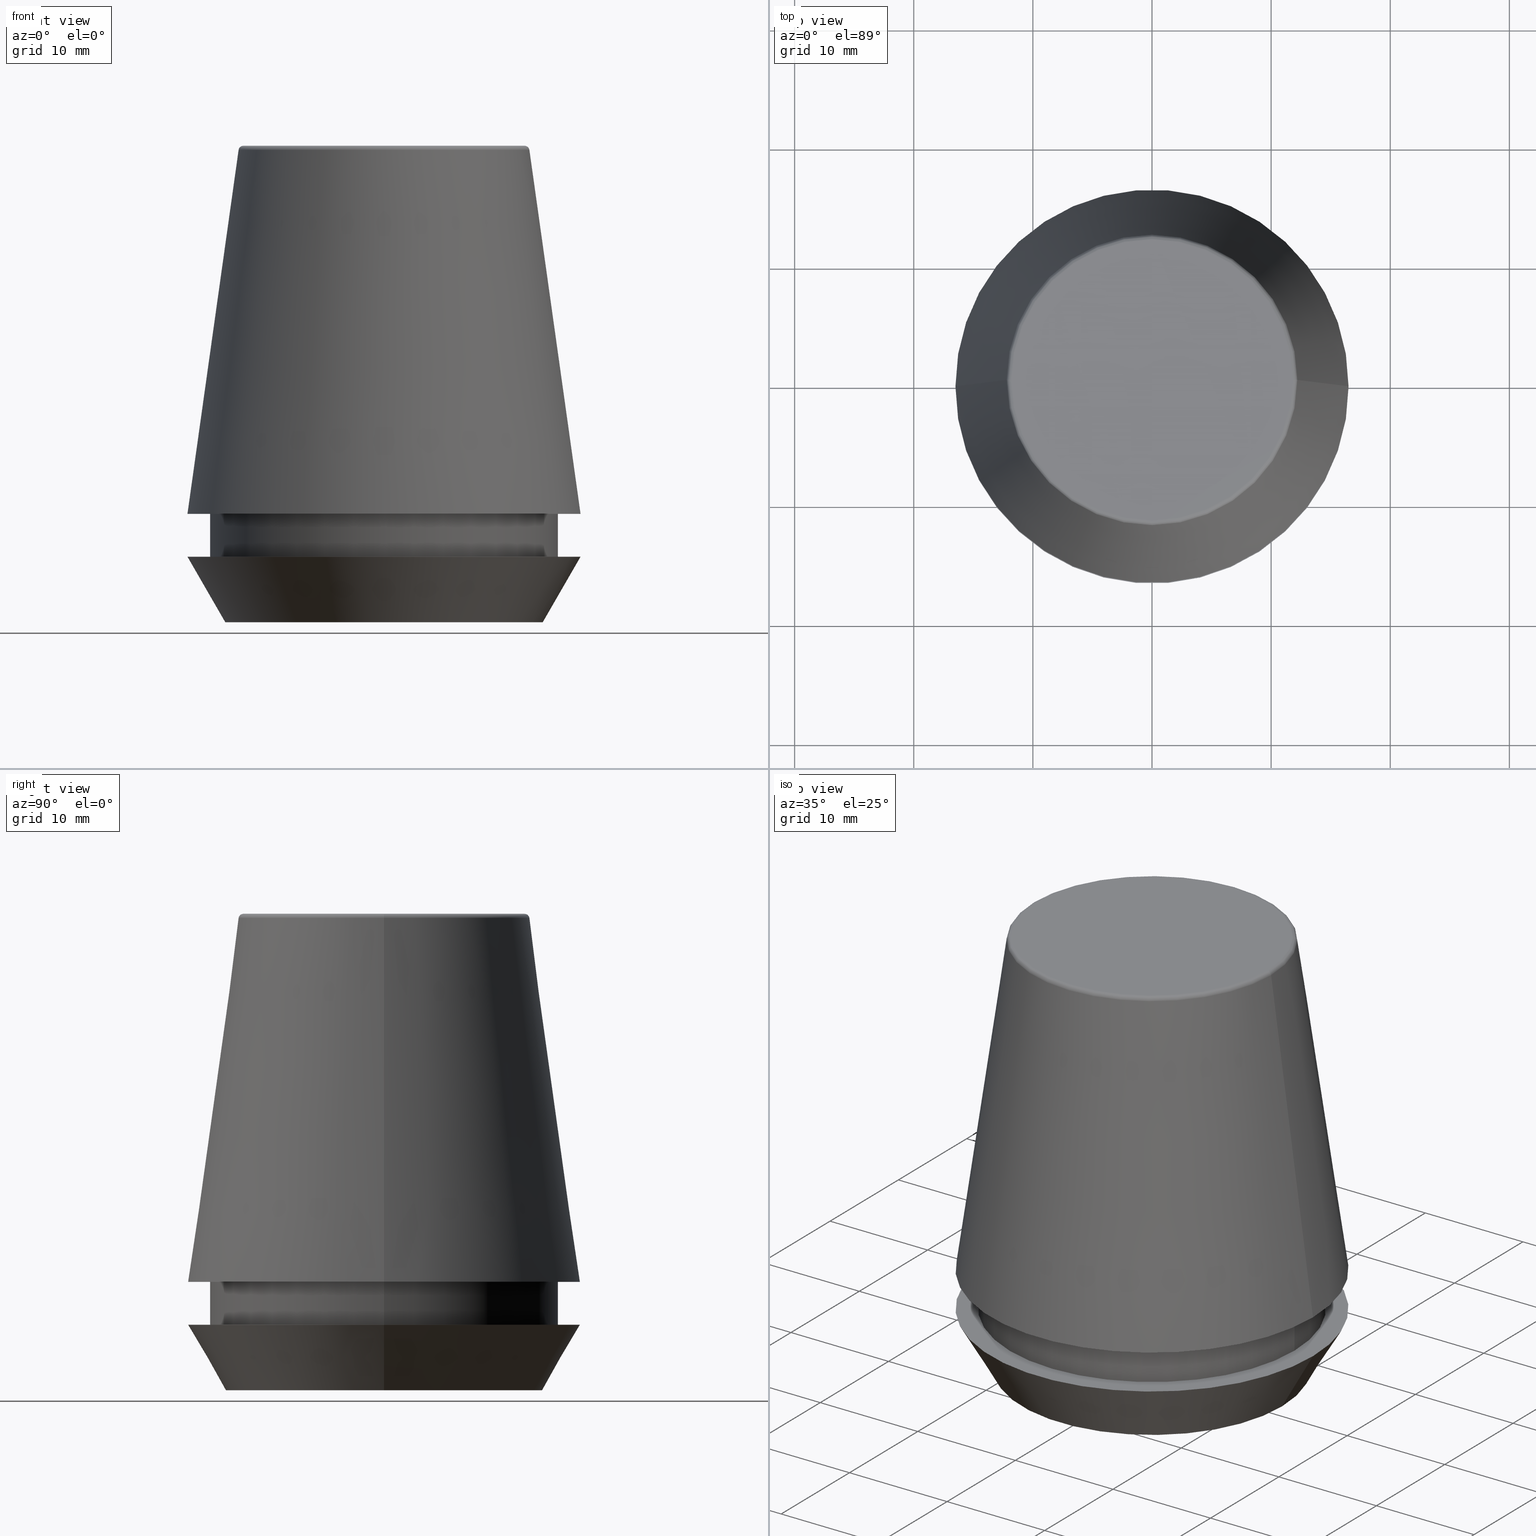
[diagram: canonical four-view strip — front | top / right | iso, engineering-drawing reading convention]
A machine part, canonical four-view strip (front | top / right | iso — engineering-drawing reading convention). The complete STEP part file that produces these views, byte-faithful:
ISO-10303-21;
HEADER;
FILE_DESCRIPTION (( 'STEP AP203' ),
    '1' );
FILE_NAME ('TAP COLLET ER 32G  14.0 X 11.2.STEP',
    '2019-04-09T11:25:57',
    ( '' ),
    ( '' ),
    'SwSTEP 2.0',
    'SolidWorks 2014',
    '' );
FILE_SCHEMA (( 'CONFIG_CONTROL_DESIGN' ));
ENDSEC;

DATA;
#1 = CARTESIAN_POINT ( 'NONE',  ( 0.0000000000000000000, 0.0000000000000000000, 5.500000000000005300 ) ) ;
#2 = DIRECTION ( 'NONE',  ( 1.000000000000000000, 0.0000000000000000000, 0.0000000000000000000 ) ) ;
#3 = DATE_AND_TIME ( #307, #228 ) ;
#4 = CYLINDRICAL_SURFACE ( 'NONE', #164, 14.60000000000000000 ) ;
#5 = VERTEX_POINT ( 'NONE', #352 ) ;
#6 = CARTESIAN_POINT ( 'NONE',  ( 16.50032537154048700, 2.020707065114692300E-015, 9.099999999999997900 ) ) ;
#7 = PLANE ( 'NONE',  #58 ) ;
#8 = CARTESIAN_POINT ( 'NONE',  ( -16.50032537154048700, 0.0000000000000000000, 9.099999999999997900 ) ) ;
#9 = ORIENTED_EDGE ( 'NONE', *, *, #255, .F. ) ;
#10 = DIRECTION ( 'NONE',  ( 0.0000000000000000000, -0.0000000000000000000, 1.000000000000000000 ) ) ;
#11 = CARTESIAN_POINT ( 'NONE',  ( 0.0000000000000000000, 0.0000000000000000000, 5.500000000000005300 ) ) ;
#12 = APPROVAL_DATE_TIME ( #318, #28 ) ;
#13 = CC_DESIGN_PERSON_AND_ORGANIZATION_ASSIGNMENT ( #47, #204, ( #151 ) ) ;
#14 = CIRCLE ( 'NONE', #89, 16.50032537154048700 ) ;
#15 = DIRECTION ( 'NONE',  ( -0.4999999999999947300, 6.123233995736700700E-017, 0.8660254037844418200 ) ) ;
#16 = ORIENTED_EDGE ( 'NONE', *, *, #321, .T. ) ;
#17 = DIRECTION ( 'NONE',  ( -1.000000000000000000, 0.0000000000000000000, 0.0000000000000000000 ) ) ;
#18 = AXIS2_PLACEMENT_3D ( 'NONE', #196, #75, #138 ) ;
#19 = CYLINDRICAL_SURFACE ( 'NONE', #31, 14.60000000000000000 ) ;
#20 = CIRCLE ( 'NONE', #76, 13.32457351945710200 ) ;
#21 = APPLICATION_CONTEXT ( 'configuration controlled 3d designs of mechanical parts and assemblies' ) ;
#22 = VERTEX_POINT ( 'NONE', #49 ) ;
#23 = ORIENTED_EDGE ( 'NONE', *, *, #291, .F. ) ;
#24 = APPROVAL_STATUS ( 'not_yet_approved' ) ;
#25 = DATE_AND_TIME ( #117, #192 ) ;
#26 = ORIENTED_EDGE ( 'NONE', *, *, #377, .F. ) ;
#27 = ORIENTED_EDGE ( 'NONE', *, *, #276, .T. ) ;
#28 = APPROVAL ( #142, 'UNSPECIFIED' ) ;
#29 = CLOSED_SHELL ( 'NONE', ( #100, #323, #65, #118, #94, #384, #293, #362, #240, #123, #328, #113 ) ) ;
#30 = VERTEX_POINT ( 'NONE', #198 ) ;
#31 = AXIS2_PLACEMENT_3D ( 'NONE', #374, #342, #99 ) ;
#32 = DIRECTION ( 'NONE',  ( 0.0000000000000000000, 0.0000000000000000000, -1.000000000000000000 ) ) ;
#33 = AXIS2_PLACEMENT_3D ( 'NONE', #149, #297, #254 ) ;
#34 = CARTESIAN_POINT ( 'NONE',  ( 0.0000000000000000000, 0.0000000000000000000, 101.8074564848000400 ) ) ;
#35 = CALENDAR_DATE ( 2019, 9, 4 ) ;
#36 = FACE_BOUND ( 'NONE', #63, .T. ) ;
#37 = DIRECTION ( 'NONE',  ( -0.0000000000000000000, -0.0000000000000000000, 1.000000000000000000 ) ) ;
#38 = AXIS2_PLACEMENT_3D ( 'NONE', #340, #78, #133 ) ;
#39 = ORIENTED_EDGE ( 'NONE', *, *, #316, .F. ) ;
#40 =( NAMED_UNIT ( * ) PLANE_ANGLE_UNIT ( ) SI_UNIT ( $, .RADIAN. ) );
#41 = APPROVAL_DATE_TIME ( #128, #361 ) ;
#42 = AXIS2_PLACEMENT_3D ( 'NONE', #102, #200, #247 ) ;
#43 = CARTESIAN_POINT ( 'NONE',  ( 0.0000000000000000000, 0.0000000000000000000, 39.60000000000000100 ) ) ;
#44 = ORIENTED_EDGE ( 'NONE', *, *, #234, .T. ) ;
#45 = DESIGN_CONTEXT ( 'detailed design', #21, 'design' ) ;
#46 = EDGE_CURVE ( 'NONE', #96, #155, #353, .T. ) ;
#47 = PERSON_AND_ORGANIZATION ( #259, #143 ) ;
#48 = CIRCLE ( 'NONE', #184, 16.50032537154048700 ) ;
#49 = CARTESIAN_POINT ( 'NONE',  ( -14.60000000000000000, 1.787984326755135800E-015, 9.099999999999997900 ) ) ;
#50 = VERTEX_POINT ( 'NONE', #223 ) ;
#51 = DIRECTION ( 'NONE',  ( 1.000000000000000000, 0.0000000000000000000, 0.0000000000000000000 ) ) ;
#52 = APPROVAL_STATUS ( 'not_yet_approved' ) ;
#53 = AXIS2_PLACEMENT_3D ( 'NONE', #301, #37, #266 ) ;
#54 = DIRECTION ( 'NONE',  ( -0.1391731009600586900, 0.0000000000000000000, -0.9902680687415712500 ) ) ;
#55 = APPROVAL_PERSON_ORGANIZATION ( #134, #361, #284 ) ;
#56 = VERTEX_POINT ( 'NONE', #282 ) ;
#57 = DIRECTION ( 'NONE',  ( -0.0000000000000000000, -0.0000000000000000000, 1.000000000000000000 ) ) ;
#58 = AXIS2_PLACEMENT_3D ( 'NONE', #233, #260, #91 ) ;
#59 = AXIS2_PLACEMENT_3D ( 'NONE', #355, #152, #179 ) ;
#60 = EDGE_CURVE ( 'NONE', #5, #215, #281, .T. ) ;
#61 = FACE_OUTER_BOUND ( 'NONE', #295, .T. ) ;
#62 = TOROIDAL_SURFACE ( 'NONE', #141, 11.80989888411031400, 0.4000000000000026900 ) ;
#63 = EDGE_LOOP ( 'NONE', ( #150, #314 ) ) ;
#64 = AXIS2_PLACEMENT_3D ( 'NONE', #130, #327, #156 ) ;
#65 = ADVANCED_FACE ( 'NONE', ( #230 ), #4, .T. ) ;
#66 = EDGE_CURVE ( 'NONE', #140, #245, #229, .T. ) ;
#67 =( NAMED_UNIT ( * ) SI_UNIT ( $, .STERADIAN. ) SOLID_ANGLE_UNIT ( ) );
#68 = CARTESIAN_POINT ( 'NONE',  ( 16.50000000000000000, 0.0000000000000000000, 5.500000000000005300 ) ) ;
#69 = FACE_BOUND ( 'NONE', #216, .T. ) ;
#70 = PRODUCT_DEFINITION_FORMATION_WITH_SPECIFIED_SOURCE ( 'ANY', '', #151, .NOT_KNOWN. ) ;
#71 = DIRECTION ( 'NONE',  ( 1.000000000000000000, 0.0000000000000000000, 0.0000000000000000000 ) ) ;
#72 = CARTESIAN_POINT ( 'NONE',  ( 0.0000000000000000000, 0.0000000000000000000, 9.099999999999997900 ) ) ;
#73 =( GEOMETRIC_REPRESENTATION_CONTEXT ( 3 ) GLOBAL_UNCERTAINTY_ASSIGNED_CONTEXT ( ( #288 ) ) GLOBAL_UNIT_ASSIGNED_CONTEXT ( ( #336, #40, #67 ) ) REPRESENTATION_CONTEXT ( 'NONE', 'WORKASPACE' ) );
#74 = DIRECTION ( 'NONE',  ( 1.000000000000000000, 0.0000000000000000000, 0.0000000000000000000 ) ) ;
#75 = DIRECTION ( 'NONE',  ( -0.0000000000000000000, -0.0000000000000000000, 1.000000000000000000 ) ) ;
#76 = AXIS2_PLACEMENT_3D ( 'NONE', #363, #299, #2 ) ;
#77 = CIRCLE ( 'NONE', #298, 12.20600611160694300 ) ;
#78 = DIRECTION ( 'NONE',  ( -0.0000000000000000000, -0.0000000000000000000, 1.000000000000000000 ) ) ;
#79 = EDGE_LOOP ( 'NONE', ( #209, #346, #387, #286 ) ) ;
#80 = ORIENTED_EDGE ( 'NONE', *, *, #239, .F. ) ;
#81 = DATE_TIME_ROLE ( 'creation_date' ) ;
#82 = VECTOR ( 'NONE', #343, 1000.000000000000000 ) ;
#83 = AXIS2_PLACEMENT_3D ( 'NONE', #92, #365, #188 ) ;
#84 = PERSON_AND_ORGANIZATION ( #259, #143 ) ;
#85 = VECTOR ( 'NONE', #15, 999.9999999999998900 ) ;
#86 = ORIENTED_EDGE ( 'NONE', *, *, #197, .T. ) ;
#87 = DIRECTION ( 'NONE',  ( 0.0000000000000000000, -1.000000000000000000, 0.0000000000000000000 ) ) ;
#88 = CIRCLE ( 'NONE', #64, 14.60000000000000000 ) ;
#89 = AXIS2_PLACEMENT_3D ( 'NONE', #283, #237, #71 ) ;
#90 = AXIS2_PLACEMENT_3D ( 'NONE', #275, #182, #211 ) ;
#91 = DIRECTION ( 'NONE',  ( 1.000000000000000000, 0.0000000000000000000, 0.0000000000000000000 ) ) ;
#92 = CARTESIAN_POINT ( 'NONE',  ( 0.0000000000000000000, 0.0000000000000000000, 40.00000000000000700 ) ) ;
#93 = PERSON_AND_ORGANIZATION ( #259, #143 ) ;
#94 = ADVANCED_FACE ( 'NONE', ( #217 ), #110, .F. ) ;
#95 = CONICAL_SURFACE ( 'NONE', #145, 13.32457351945710200, 0.5235987755982927100 ) ;
#96 = VERTEX_POINT ( 'NONE', #220 ) ;
#97 = EDGE_LOOP ( 'NONE', ( #112, #244, #39, #383 ) ) ;
#98 = AXIS2_PLACEMENT_3D ( 'NONE', #347, #367, #101 ) ;
#99 = DIRECTION ( 'NONE',  ( 1.000000000000000000, 0.0000000000000000000, 0.0000000000000000000 ) ) ;
#100 = ADVANCED_FACE ( 'NONE', ( #193 ), #338, .T. ) ;
#101 = DIRECTION ( 'NONE',  ( 1.000000000000000000, 0.0000000000000000000, 0.0000000000000000000 ) ) ;
#102 = CARTESIAN_POINT ( 'NONE',  ( 0.0000000000000000000, 0.0000000000000000000, 0.0000000000000000000 ) ) ;
#103 = DIRECTION ( 'NONE',  ( 1.000000000000000000, 0.0000000000000000000, 0.0000000000000000000 ) ) ;
#104 = ORIENTED_EDGE ( 'NONE', *, *, #105, .F. ) ;
#105 = EDGE_CURVE ( 'NONE', #256, #96, #272, .T. ) ;
#106 = PERSON_AND_ORGANIZATION ( #259, #143 ) ;
#107 = FACE_OUTER_BOUND ( 'NONE', #109, .T. ) ;
#108 = DIRECTION ( 'NONE',  ( -1.000000000000000000, 0.0000000000000000000, -0.0000000000000000000 ) ) ;
#109 = EDGE_LOOP ( 'NONE', ( #9, #180 ) ) ;
#110 = PLANE ( 'NONE',  #159 ) ;
#111 = CARTESIAN_POINT ( 'NONE',  ( 14.60000000000000000, 0.0000000000000000000, 101.8074564848000400 ) ) ;
#112 = ORIENTED_EDGE ( 'NONE', *, *, #210, .T. ) ;
#113 = ADVANCED_FACE ( 'NONE', ( #294 ), #62, .T. ) ;
#114 = APPROVAL_ROLE ( '' ) ;
#115 = AXIS2_PLACEMENT_3D ( 'NONE', #335, #10, #162 ) ;
#116 = CC_DESIGN_DATE_AND_TIME_ASSIGNMENT ( #25, #81, ( #232 ) ) ;
#117 = CALENDAR_DATE ( 2019, 9, 4 ) ;
#118 = ADVANCED_FACE ( 'NONE', ( #238 ), #95, .T. ) ;
#119 = ORIENTED_EDGE ( 'NONE', *, *, #190, .T. ) ;
#120 = APPLICATION_PROTOCOL_DEFINITION ( 'international standard', 'config_control_design', 1994, #368 ) ;
#121 = ORIENTED_EDGE ( 'NONE', *, *, #354, .F. ) ;
#122 = AXIS2_PLACEMENT_3D ( 'NONE', #1, #262, #296 ) ;
#123 = ADVANCED_FACE ( 'NONE', ( #107, #36 ), #270, .F. ) ;
#124 = AXIS2_PLACEMENT_3D ( 'NONE', #72, #268, #103 ) ;
#125 = EDGE_LOOP ( 'NONE', ( #44, #119 ) ) ;
#126 = CARTESIAN_POINT ( 'NONE',  ( 11.80989888411031400, 0.0000000000000000000, 39.60000000000000100 ) ) ;
#127 = DIRECTION ( 'NONE',  ( 0.0000000000000000000, 0.0000000000000000000, -1.000000000000000000 ) ) ;
#128 = DATE_AND_TIME ( #206, #271 ) ;
#129 = CARTESIAN_POINT ( 'NONE',  ( -16.50000000000000000, 2.020667218593133100E-015, 5.500000000000005300 ) ) ;
#130 = CARTESIAN_POINT ( 'NONE',  ( 0.0000000000000000000, 0.0000000000000000000, 5.500000000000005300 ) ) ;
#131 = DIRECTION ( 'NONE',  ( -1.000000000000000000, 1.224646799147352500E-016, 0.0000000000000000000 ) ) ;
#132 = EDGE_CURVE ( 'NONE', #22, #155, #208, .T. ) ;
#133 = DIRECTION ( 'NONE',  ( 1.000000000000000000, 0.0000000000000000000, 0.0000000000000000000 ) ) ;
#134 = PERSON_AND_ORGANIZATION ( #259, #143 ) ;
#135 = DIRECTION ( 'NONE',  ( 1.000000000000000000, 0.0000000000000000000, 0.0000000000000000000 ) ) ;
#136 = DIRECTION ( 'NONE',  ( 1.000000000000000000, 0.0000000000000000000, 0.0000000000000000000 ) ) ;
#137 = AXIS2_PLACEMENT_3D ( 'NONE', #357, #359, #17 ) ;
#138 = DIRECTION ( 'NONE',  ( 1.000000000000000000, 0.0000000000000000000, 0.0000000000000000000 ) ) ;
#139 = EDGE_LOOP ( 'NONE', ( #121, #202, #325, #144 ) ) ;
#140 = VERTEX_POINT ( 'NONE', #333 ) ;
#141 = AXIS2_PLACEMENT_3D ( 'NONE', #43, #194, #135 ) ;
#142 = APPROVAL_STATUS ( 'not_yet_approved' ) ;
#143 = ORGANIZATION ( 'UNSPECIFIED', 'UNSPECIFIED', '' ) ;
#144 = ORIENTED_EDGE ( 'NONE', *, *, #255, .T. ) ;
#145 = AXIS2_PLACEMENT_3D ( 'NONE', #306, #163, #370 ) ;
#146 = LOCAL_TIME ( 16, 55, 57.00000000000000000, #235 ) ;
#147 = FACE_OUTER_BOUND ( 'NONE', #139, .T. ) ;
#148 = LINE ( 'NONE', #304, #285 ) ;
#149 = CARTESIAN_POINT ( 'NONE',  ( 0.0000000000000000000, 0.0000000000000000000, 0.0000000000000000000 ) ) ;
#150 = ORIENTED_EDGE ( 'NONE', *, *, #316, .T. ) ;
#151 = PRODUCT ( 'TAP COLLET ER 32G  14.0 X 11.2', 'TAP COLLET ER 32G  14.0 X 11.2', '', ( #376 ) ) ;
#152 = DIRECTION ( 'NONE',  ( -0.0000000000000000000, -0.0000000000000000000, 1.000000000000000000 ) ) ;
#153 = CIRCLE ( 'NONE', #122, 16.50000000000000000 ) ;
#154 = AXIS2_PLACEMENT_3D ( 'NONE', #369, #242, #136 ) ;
#155 = VERTEX_POINT ( 'NONE', #161 ) ;
#156 = DIRECTION ( 'NONE',  ( 1.000000000000000000, 0.0000000000000000000, 0.0000000000000000000 ) ) ;
#157 = CARTESIAN_POINT ( 'NONE',  ( 11.80989888411031400, 0.0000000000000000000, 40.00000000000000700 ) ) ;
#158 = DIRECTION ( 'NONE',  ( 1.224646799147353200E-016, 1.000000000000000000, 0.0000000000000000000 ) ) ;
#159 = AXIS2_PLACEMENT_3D ( 'NONE', #277, #166, #108 ) ;
#160 = CONICAL_SURFACE ( 'NONE', #137, 16.50032537154048700, 0.1396263401595395900 ) ;
#161 = CARTESIAN_POINT ( 'NONE',  ( 14.60000000000000000, 0.0000000000000000000, 9.099999999999997900 ) ) ;
#162 = DIRECTION ( 'NONE',  ( 1.000000000000000000, 0.0000000000000000000, 0.0000000000000000000 ) ) ;
#163 = DIRECTION ( 'NONE',  ( -0.0000000000000000000, -0.0000000000000000000, 1.000000000000000000 ) ) ;
#164 = AXIS2_PLACEMENT_3D ( 'NONE', #34, #170, #51 ) ;
#165 = PRODUCT_DEFINITION_SHAPE ( 'NONE', 'NONE',  #232 ) ;
#166 = DIRECTION ( 'NONE',  ( 0.0000000000000000000, 0.0000000000000000000, -1.000000000000000000 ) ) ;
#167 = APPROVAL_PERSON_ORGANIZATION ( #84, #289, #226 ) ;
#168 = CIRCLE ( 'NONE', #18, 16.50000000000000000 ) ;
#169 = VERTEX_POINT ( 'NONE', #8 ) ;
#170 = DIRECTION ( 'NONE',  ( -0.0000000000000000000, -0.0000000000000000000, 1.000000000000000000 ) ) ;
#171 = FACE_OUTER_BOUND ( 'NONE', #305, .T. ) ;
#172 = EDGE_LOOP ( 'NONE', ( #290, #191, #345, #303 ) ) ;
#173 = SECURITY_CLASSIFICATION_LEVEL ( 'unclassified' ) ;
#174 = PERSON_AND_ORGANIZATION ( #259, #143 ) ;
#175 = FACE_OUTER_BOUND ( 'NONE', #315, .T. ) ;
#176 = ORIENTED_EDGE ( 'NONE', *, *, #132, .F. ) ;
#177 = ORIENTED_EDGE ( 'NONE', *, *, #197, .F. ) ;
#178 = EDGE_CURVE ( 'NONE', #30, #56, #309, .T. ) ;
#179 = DIRECTION ( 'NONE',  ( 1.000000000000000000, 0.0000000000000000000, 0.0000000000000000000 ) ) ;
#180 = ORIENTED_EDGE ( 'NONE', *, *, #185, .F. ) ;
#181 = DIRECTION ( 'NONE',  ( 1.000000000000000000, 0.0000000000000000000, 0.0000000000000000000 ) ) ;
#182 = DIRECTION ( 'NONE',  ( 0.0000000000000000000, 0.0000000000000000000, -1.000000000000000000 ) ) ;
#183 = APPROVAL_PERSON_ORGANIZATION ( #106, #28, #114 ) ;
#184 = AXIS2_PLACEMENT_3D ( 'NONE', #264, #386, #181 ) ;
#185 = EDGE_CURVE ( 'NONE', #332, #169, #14, .T. ) ;
#186 = ORIENTED_EDGE ( 'NONE', *, *, #377, .T. ) ;
#187 = CARTESIAN_POINT ( 'NONE',  ( -11.80989888411031400, 1.446295486667959300E-015, 39.60000000000000100 ) ) ;
#188 = DIRECTION ( 'NONE',  ( 1.000000000000000000, 0.0000000000000000000, 0.0000000000000000000 ) ) ;
#189 = VECTOR ( 'NONE', #324, 999.9999999999998900 ) ;
#190 = EDGE_CURVE ( 'NONE', #50, #360, #199, .T. ) ;
#191 = ORIENTED_EDGE ( 'NONE', *, *, #227, .T. ) ;
#192 = LOCAL_TIME ( 16, 55, 57.00000000000000000, #261 ) ;
#193 = FACE_OUTER_BOUND ( 'NONE', #172, .T. ) ;
#194 = DIRECTION ( 'NONE',  ( -0.0000000000000000000, -0.0000000000000000000, 1.000000000000000000 ) ) ;
#195 = EDGE_CURVE ( 'NONE', #30, #169, #148, .T. ) ;
#196 = CARTESIAN_POINT ( 'NONE',  ( 0.0000000000000000000, 0.0000000000000000000, 5.500000000000005300 ) ) ;
#197 = EDGE_CURVE ( 'NONE', #140, #5, #20, .T. ) ;
#198 = CARTESIAN_POINT ( 'NONE',  ( -12.20600611160694300, 0.0000000000000000000, 39.65566924038402900 ) ) ;
#199 = CIRCLE ( 'NONE', #83, 11.80989888411031400 ) ;
#200 = DIRECTION ( 'NONE',  ( -0.0000000000000000000, -0.0000000000000000000, 1.000000000000000000 ) ) ;
#201 = AXIS2_PLACEMENT_3D ( 'NONE', #375, #32, #312 ) ;
#202 = ORIENTED_EDGE ( 'NONE', *, *, #178, .F. ) ;
#203 = ADVANCED_BREP_SHAPE_REPRESENTATION ( 'TAP COLLET ER 32G  14.0 X 11.2', ( #344, #33 ), #73 ) ;
#204 = PERSON_AND_ORGANIZATION_ROLE ( 'design_owner' ) ;
#205 = DATE_TIME_ROLE ( 'classification_date' ) ;
#206 = CALENDAR_DATE ( 2019, 9, 4 ) ;
#207 = DIRECTION ( 'NONE',  ( -0.0000000000000000000, -0.0000000000000000000, 1.000000000000000000 ) ) ;
#208 = CIRCLE ( 'NONE', #124, 14.60000000000000000 ) ;
#209 = ORIENTED_EDGE ( 'NONE', *, *, #291, .T. ) ;
#210 = EDGE_CURVE ( 'NONE', #96, #256, #88, .T. ) ;
#211 = DIRECTION ( 'NONE',  ( -1.000000000000000000, 0.0000000000000000000, -0.0000000000000000000 ) ) ;
#212 = EDGE_CURVE ( 'NONE', #256, #22, #382, .T. ) ;
#213 = CARTESIAN_POINT ( 'NONE',  ( -14.60000000000000000, 1.787984326755135800E-015, 101.8074564848000400 ) ) ;
#214 = PLANE ( 'NONE',  #90 ) ;
#215 = VERTEX_POINT ( 'NONE', #68 ) ;
#216 = EDGE_LOOP ( 'NONE', ( #274, #104 ) ) ;
#217 = FACE_OUTER_BOUND ( 'NONE', #125, .T. ) ;
#218 = ORIENTED_EDGE ( 'NONE', *, *, #46, .T. ) ;
#219 = AXIS2_PLACEMENT_3D ( 'NONE', #11, #241, #74 ) ;
#220 = CARTESIAN_POINT ( 'NONE',  ( 14.60000000000000000, 0.0000000000000000000, 5.500000000000005300 ) ) ;
#221 = CALENDAR_DATE ( 2019, 9, 4 ) ;
#222 = ORIENTED_EDGE ( 'NONE', *, *, #195, .F. ) ;
#223 = CARTESIAN_POINT ( 'NONE',  ( -11.80989888411031400, 1.470550059081603400E-015, 40.00000000000000700 ) ) ;
#224 = APPLICATION_PROTOCOL_DEFINITION ( 'international standard', 'config_control_design', 1994, #21 ) ;
#225 = LINE ( 'NONE', #252, #381 ) ;
#226 = APPROVAL_ROLE ( '' ) ;
#227 = EDGE_CURVE ( 'NONE', #30, #50, #249, .T. ) ;
#228 = LOCAL_TIME ( 16, 55, 57.00000000000000000, #326 ) ;
#229 = LINE ( 'NONE', #310, #85 ) ;
#230 = FACE_OUTER_BOUND ( 'NONE', #97, .T. ) ;
#231 = FACE_OUTER_BOUND ( 'NONE', #364, .T. ) ;
#232 = PRODUCT_DEFINITION ( 'UNKNOWN', '', #70, #45 ) ;
#233 = CARTESIAN_POINT ( 'NONE',  ( 0.0000000000000000000, 0.0000000000000000000, 0.0000000000000000000 ) ) ;
#234 = EDGE_CURVE ( 'NONE', #360, #50, #322, .T. ) ;
#235 = COORDINATED_UNIVERSAL_TIME_OFFSET ( 5, 30, .AHEAD. ) ;
#236 = ORIENTED_EDGE ( 'NONE', *, *, #105, .T. ) ;
#237 = DIRECTION ( 'NONE',  ( -0.0000000000000000000, -0.0000000000000000000, 1.000000000000000000 ) ) ;
#238 = FACE_OUTER_BOUND ( 'NONE', #79, .T. ) ;
#239 = EDGE_CURVE ( 'NONE', #56, #30, #77, .T. ) ;
#240 = ADVANCED_FACE ( 'NONE', ( #175 ), #19, .T. ) ;
#241 = DIRECTION ( 'NONE',  ( -0.0000000000000000000, -0.0000000000000000000, 1.000000000000000000 ) ) ;
#242 = DIRECTION ( 'NONE',  ( -0.0000000000000000000, -0.0000000000000000000, 1.000000000000000000 ) ) ;
#243 = PERSON_AND_ORGANIZATION ( #259, #143 ) ;
#244 = ORIENTED_EDGE ( 'NONE', *, *, #212, .T. ) ;
#245 = VERTEX_POINT ( 'NONE', #129 ) ;
#246 = PRODUCT_RELATED_PRODUCT_CATEGORY ( 'detail', '', ( #151 ) ) ;
#247 = DIRECTION ( 'NONE',  ( 1.000000000000000000, 0.0000000000000000000, 0.0000000000000000000 ) ) ;
#248 = CONICAL_SURFACE ( 'NONE', #38, 13.32457351945710200, 0.5235987755982927100 ) ;
#249 = CIRCLE ( 'NONE', #349, 0.4000000000000028000 ) ;
#250 = AXIS2_PLACEMENT_3D ( 'NONE', #126, #87, #127 ) ;
#251 = PERSON_AND_ORGANIZATION_ROLE ( 'creator' ) ;
#252 = CARTESIAN_POINT ( 'NONE',  ( 16.50032537154048700, 2.020707065114692300E-015, 9.099999999999997900 ) ) ;
#253 = COORDINATED_UNIVERSAL_TIME_OFFSET ( 5, 30, .AHEAD. ) ;
#254 = DIRECTION ( 'NONE',  ( 1.000000000000000000, 0.0000000000000000000, 0.0000000000000000000 ) ) ;
#255 = EDGE_CURVE ( 'NONE', #169, #332, #48, .T. ) ;
#256 = VERTEX_POINT ( 'NONE', #330 ) ;
#257 = FACE_OUTER_BOUND ( 'NONE', #372, .T. ) ;
#258 = ORIENTED_EDGE ( 'NONE', *, *, #60, .T. ) ;
#259 = PERSON ( 'UNSPECIFIED', 'UNSPECIFIED', 'UNSPECIFIED', ('UNSPECIFIED'), ('UNSPECIFIED'), ('UNSPECIFIED') ) ;
#260 = DIRECTION ( 'NONE',  ( 0.0000000000000000000, -0.0000000000000000000, 1.000000000000000000 ) ) ;
#261 = COORDINATED_UNIVERSAL_TIME_OFFSET ( 5, 30, .AHEAD. ) ;
#262 = DIRECTION ( 'NONE',  ( -0.0000000000000000000, -0.0000000000000000000, 1.000000000000000000 ) ) ;
#263 = ORIENTED_EDGE ( 'NONE', *, *, #227, .F. ) ;
#264 = CARTESIAN_POINT ( 'NONE',  ( 0.0000000000000000000, 0.0000000000000000000, 9.099999999999997900 ) ) ;
#265 = CC_DESIGN_SECURITY_CLASSIFICATION ( #339, ( #70 ) ) ;
#266 = DIRECTION ( 'NONE',  ( 1.000000000000000000, 0.0000000000000000000, 0.0000000000000000000 ) ) ;
#267 = ORIENTED_EDGE ( 'NONE', *, *, #212, .F. ) ;
#268 = DIRECTION ( 'NONE',  ( -0.0000000000000000000, -0.0000000000000000000, 1.000000000000000000 ) ) ;
#269 = CC_DESIGN_APPROVAL ( #289, ( #339 ) ) ;
#270 = PLANE ( 'NONE',  #115 ) ;
#271 = LOCAL_TIME ( 16, 55, 57.00000000000000000, #358 ) ;
#272 = CIRCLE ( 'NONE', #219, 14.60000000000000000 ) ;
#273 = DIRECTION ( 'NONE',  ( 0.1391731009600586900, 1.704378926181473100E-017, -0.9902680687415712500 ) ) ;
#274 = ORIENTED_EDGE ( 'NONE', *, *, #210, .F. ) ;
#275 = CARTESIAN_POINT ( 'NONE',  ( 0.0000000000000000000, 16.50000000000000000, 5.500000000000002700 ) ) ;
#276 = EDGE_CURVE ( 'NONE', #215, #245, #168, .T. ) ;
#277 = CARTESIAN_POINT ( 'NONE',  ( 0.0000000000000000000, 11.80989888411031400, 40.00000000000000700 ) ) ;
#278 = VECTOR ( 'NONE', #207, 1000.000000000000000 ) ;
#279 = CARTESIAN_POINT ( 'NONE',  ( 13.32457351945710200, 0.0000000000000000000, 0.0000000000000000000 ) ) ;
#280 = ORIENTED_EDGE ( 'NONE', *, *, #178, .T. ) ;
#281 = LINE ( 'NONE', #279, #189 ) ;
#282 = CARTESIAN_POINT ( 'NONE',  ( 12.20600611160694300, 1.757755848304969800E-015, 39.65566924038402900 ) ) ;
#283 = CARTESIAN_POINT ( 'NONE',  ( 0.0000000000000000000, 0.0000000000000000000, 9.099999999999997900 ) ) ;
#284 = APPROVAL_ROLE ( '' ) ;
#285 = VECTOR ( 'NONE', #54, 1000.000000000000000 ) ;
#286 = ORIENTED_EDGE ( 'NONE', *, *, #60, .F. ) ;
#287 = CARTESIAN_POINT ( 'NONE',  ( 0.0000000000000000000, 0.0000000000000000000, 39.65566924038402900 ) ) ;
#288 = UNCERTAINTY_MEASURE_WITH_UNIT (LENGTH_MEASURE( 1.000000000000000100E-005 ), #336, 'distance_accuracy_value', 'NONE');
#289 = APPROVAL ( #24, 'UNSPECIFIED' ) ;
#290 = ORIENTED_EDGE ( 'NONE', *, *, #239, .T. ) ;
#291 = EDGE_CURVE ( 'NONE', #5, #140, #320, .T. ) ;
#292 = CC_DESIGN_DATE_AND_TIME_ASSIGNMENT ( #3, #205, ( #339 ) ) ;
#293 = ADVANCED_FACE ( 'NONE', ( #61 ), #248, .T. ) ;
#294 = FACE_OUTER_BOUND ( 'NONE', #302, .T. ) ;
#295 = EDGE_LOOP ( 'NONE', ( #351, #86, #258, #26 ) ) ;
#296 = DIRECTION ( 'NONE',  ( 1.000000000000000000, 0.0000000000000000000, 0.0000000000000000000 ) ) ;
#297 = DIRECTION ( 'NONE',  ( 0.0000000000000000000, 0.0000000000000000000, 1.000000000000000000 ) ) ;
#298 = AXIS2_PLACEMENT_3D ( 'NONE', #287, #57, #319 ) ;
#299 = DIRECTION ( 'NONE',  ( -0.0000000000000000000, -0.0000000000000000000, 1.000000000000000000 ) ) ;
#300 = DATE_AND_TIME ( #221, #146 ) ;
#301 = CARTESIAN_POINT ( 'NONE',  ( 0.0000000000000000000, 0.0000000000000000000, 40.00000000000000700 ) ) ;
#302 = EDGE_LOOP ( 'NONE', ( #263, #280, #16, #366 ) ) ;
#303 = ORIENTED_EDGE ( 'NONE', *, *, #321, .F. ) ;
#304 = CARTESIAN_POINT ( 'NONE',  ( -16.50032537154048700, 0.0000000000000000000, 9.099999999999997900 ) ) ;
#305 = EDGE_LOOP ( 'NONE', ( #80, #341, #373, #222 ) ) ;
#306 = CARTESIAN_POINT ( 'NONE',  ( 0.0000000000000000000, 0.0000000000000000000, 0.0000000000000000000 ) ) ;
#307 = CALENDAR_DATE ( 2019, 9, 4 ) ;
#308 = SHAPE_DEFINITION_REPRESENTATION ( #165, #203 ) ;
#309 = CIRCLE ( 'NONE', #98, 12.20600611160694300 ) ;
#310 = CARTESIAN_POINT ( 'NONE',  ( -13.32457351945710200, 1.631789631060672300E-015, 0.0000000000000000000 ) ) ;
#311 = CC_DESIGN_PERSON_AND_ORGANIZATION_ASSIGNMENT ( #243, #379, ( #339 ) ) ;
#312 = DIRECTION ( 'NONE',  ( -1.000000000000000000, 0.0000000000000000000, 0.0000000000000000000 ) ) ;
#313 = PERSON_AND_ORGANIZATION_ROLE ( 'creator' ) ;
#314 = ORIENTED_EDGE ( 'NONE', *, *, #132, .T. ) ;
#315 = EDGE_LOOP ( 'NONE', ( #267, #236, #218, #176 ) ) ;
#316 = EDGE_CURVE ( 'NONE', #155, #22, #385, .T. ) ;
#317 = CC_DESIGN_APPROVAL ( #361, ( #232 ) ) ;
#318 = DATE_AND_TIME ( #35, #337 ) ;
#319 = DIRECTION ( 'NONE',  ( 1.000000000000000000, 0.0000000000000000000, 0.0000000000000000000 ) ) ;
#320 = CIRCLE ( 'NONE', #42, 13.32457351945710200 ) ;
#321 = EDGE_CURVE ( 'NONE', #56, #360, #378, .T. ) ;
#322 = CIRCLE ( 'NONE', #53, 11.80989888411031400 ) ;
#323 = ADVANCED_FACE ( 'NONE', ( #171 ), #331, .T. ) ;
#324 = DIRECTION ( 'NONE',  ( 0.4999999999999947300, 0.0000000000000000000, 0.8660254037844418200 ) ) ;
#325 = ORIENTED_EDGE ( 'NONE', *, *, #195, .T. ) ;
#326 = COORDINATED_UNIVERSAL_TIME_OFFSET ( 5, 30, .AHEAD. ) ;
#327 = DIRECTION ( 'NONE',  ( -0.0000000000000000000, -0.0000000000000000000, 1.000000000000000000 ) ) ;
#328 = ADVANCED_FACE ( 'NONE', ( #147 ), #160, .T. ) ;
#329 = CC_DESIGN_PERSON_AND_ORGANIZATION_ASSIGNMENT ( #350, #251, ( #232 ) ) ;
#330 = CARTESIAN_POINT ( 'NONE',  ( -14.60000000000000000, 1.787984326755135800E-015, 5.500000000000005300 ) ) ;
#331 = CONICAL_SURFACE ( 'NONE', #201, 16.50032537154048700, 0.1396263401595395900 ) ;
#332 = VERTEX_POINT ( 'NONE', #6 ) ;
#333 = CARTESIAN_POINT ( 'NONE',  ( -13.32457351945710200, 1.826228424826902600E-015, 0.0000000000000000000 ) ) ;
#334 = CC_DESIGN_APPROVAL ( #28, ( #70 ) ) ;
#335 = CARTESIAN_POINT ( 'NONE',  ( 0.0000000000000000000, 16.50032537154048700, 9.099999999999999600 ) ) ;
#336 =( LENGTH_UNIT ( ) NAMED_UNIT ( * ) SI_UNIT ( .MILLI., .METRE. ) );
#337 = LOCAL_TIME ( 16, 55, 57.00000000000000000, #253 ) ;
#338 = TOROIDAL_SURFACE ( 'NONE', #154, 11.80989888411031400, 0.4000000000000026900 ) ;
#339 = SECURITY_CLASSIFICATION ( '', '', #173 ) ;
#340 = CARTESIAN_POINT ( 'NONE',  ( 0.0000000000000000000, 0.0000000000000000000, 0.0000000000000000000 ) ) ;
#341 = ORIENTED_EDGE ( 'NONE', *, *, #354, .T. ) ;
#342 = DIRECTION ( 'NONE',  ( -0.0000000000000000000, -0.0000000000000000000, 1.000000000000000000 ) ) ;
#343 = DIRECTION ( 'NONE',  ( -0.0000000000000000000, -0.0000000000000000000, 1.000000000000000000 ) ) ;
#344 = MANIFOLD_SOLID_BREP ( 'Revolve1', #29 ) ;
#345 = ORIENTED_EDGE ( 'NONE', *, *, #234, .F. ) ;
#346 = ORIENTED_EDGE ( 'NONE', *, *, #66, .T. ) ;
#347 = CARTESIAN_POINT ( 'NONE',  ( 0.0000000000000000000, 0.0000000000000000000, 39.65566924038402900 ) ) ;
#348 = PERSON_AND_ORGANIZATION_ROLE ( 'design_supplier' ) ;
#349 = AXIS2_PLACEMENT_3D ( 'NONE', #187, #158, #131 ) ;
#350 = PERSON_AND_ORGANIZATION ( #259, #143 ) ;
#351 = ORIENTED_EDGE ( 'NONE', *, *, #66, .F. ) ;
#352 = CARTESIAN_POINT ( 'NONE',  ( 13.32457351945710200, 0.0000000000000000000, 0.0000000000000000000 ) ) ;
#353 = LINE ( 'NONE', #111, #82 ) ;
#354 = EDGE_CURVE ( 'NONE', #56, #332, #225, .T. ) ;
#355 = CARTESIAN_POINT ( 'NONE',  ( 0.0000000000000000000, 0.0000000000000000000, 9.099999999999997900 ) ) ;
#356 = CC_DESIGN_PERSON_AND_ORGANIZATION_ASSIGNMENT ( #174, #348, ( #70 ) ) ;
#357 = CARTESIAN_POINT ( 'NONE',  ( 0.0000000000000000000, 0.0000000000000000000, 9.099999999999997900 ) ) ;
#358 = COORDINATED_UNIVERSAL_TIME_OFFSET ( 5, 30, .AHEAD. ) ;
#359 = DIRECTION ( 'NONE',  ( 0.0000000000000000000, 0.0000000000000000000, -1.000000000000000000 ) ) ;
#360 = VERTEX_POINT ( 'NONE', #157 ) ;
#361 = APPROVAL ( #52, 'UNSPECIFIED' ) ;
#362 = ADVANCED_FACE ( 'NONE', ( #69, #257 ), #214, .F. ) ;
#363 = CARTESIAN_POINT ( 'NONE',  ( 0.0000000000000000000, 0.0000000000000000000, 0.0000000000000000000 ) ) ;
#364 = EDGE_LOOP ( 'NONE', ( #23, #177 ) ) ;
#365 = DIRECTION ( 'NONE',  ( -0.0000000000000000000, -0.0000000000000000000, 1.000000000000000000 ) ) ;
#366 = ORIENTED_EDGE ( 'NONE', *, *, #190, .F. ) ;
#367 = DIRECTION ( 'NONE',  ( -0.0000000000000000000, -0.0000000000000000000, 1.000000000000000000 ) ) ;
#368 = APPLICATION_CONTEXT ( 'configuration controlled 3d designs of mechanical parts and assemblies' ) ;
#369 = CARTESIAN_POINT ( 'NONE',  ( 0.0000000000000000000, 0.0000000000000000000, 39.60000000000000100 ) ) ;
#370 = DIRECTION ( 'NONE',  ( 1.000000000000000000, 0.0000000000000000000, 0.0000000000000000000 ) ) ;
#371 = CC_DESIGN_PERSON_AND_ORGANIZATION_ASSIGNMENT ( #93, #313, ( #70 ) ) ;
#372 = EDGE_LOOP ( 'NONE', ( #27, #186 ) ) ;
#373 = ORIENTED_EDGE ( 'NONE', *, *, #185, .T. ) ;
#374 = CARTESIAN_POINT ( 'NONE',  ( 0.0000000000000000000, 0.0000000000000000000, 101.8074564848000400 ) ) ;
#375 = CARTESIAN_POINT ( 'NONE',  ( 0.0000000000000000000, 0.0000000000000000000, 9.099999999999997900 ) ) ;
#376 = MECHANICAL_CONTEXT ( 'NONE', #368, 'mechanical' ) ;
#377 = EDGE_CURVE ( 'NONE', #245, #215, #153, .T. ) ;
#378 = CIRCLE ( 'NONE', #250, 0.4000000000000045200 ) ;
#379 = PERSON_AND_ORGANIZATION_ROLE ( 'classification_officer' ) ;
#380 = APPROVAL_DATE_TIME ( #300, #289 ) ;
#381 = VECTOR ( 'NONE', #273, 1000.000000000000000 ) ;
#382 = LINE ( 'NONE', #213, #278 ) ;
#383 = ORIENTED_EDGE ( 'NONE', *, *, #46, .F. ) ;
#384 = ADVANCED_FACE ( 'NONE', ( #231 ), #7, .F. ) ;
#385 = CIRCLE ( 'NONE', #59, 14.60000000000000000 ) ;
#386 = DIRECTION ( 'NONE',  ( -0.0000000000000000000, -0.0000000000000000000, 1.000000000000000000 ) ) ;
#387 = ORIENTED_EDGE ( 'NONE', *, *, #276, .F. ) ;
ENDSEC;
END-ISO-10303-21;
